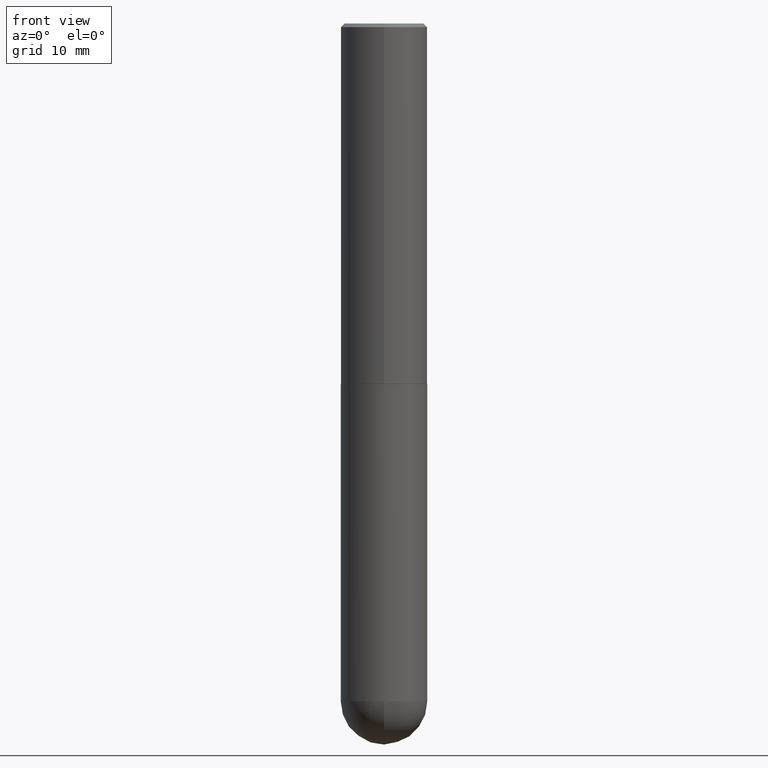
[diagram: clean part render]
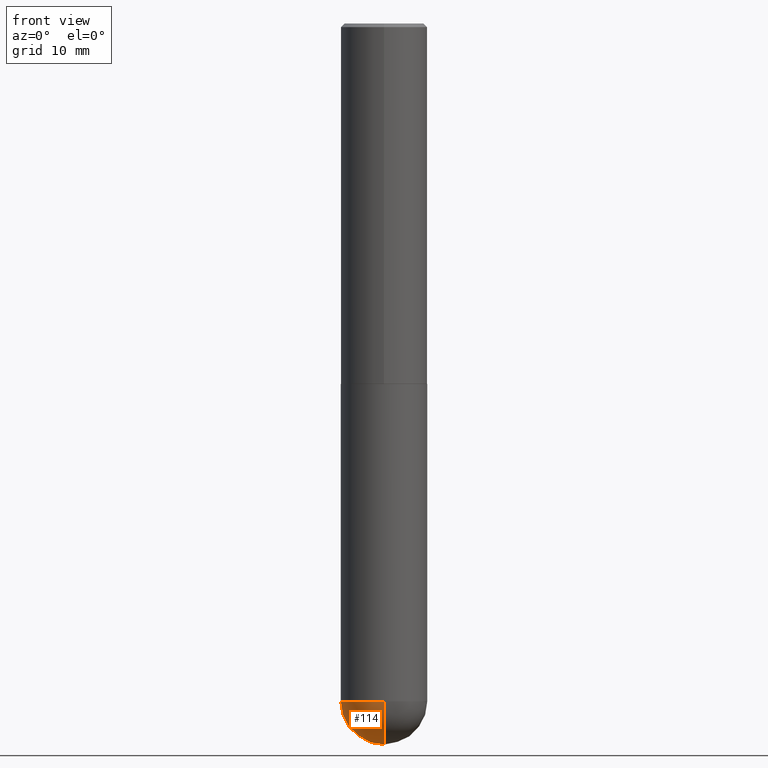
[diagram: same view with one face highlighted and labeled with its STEP entity id]
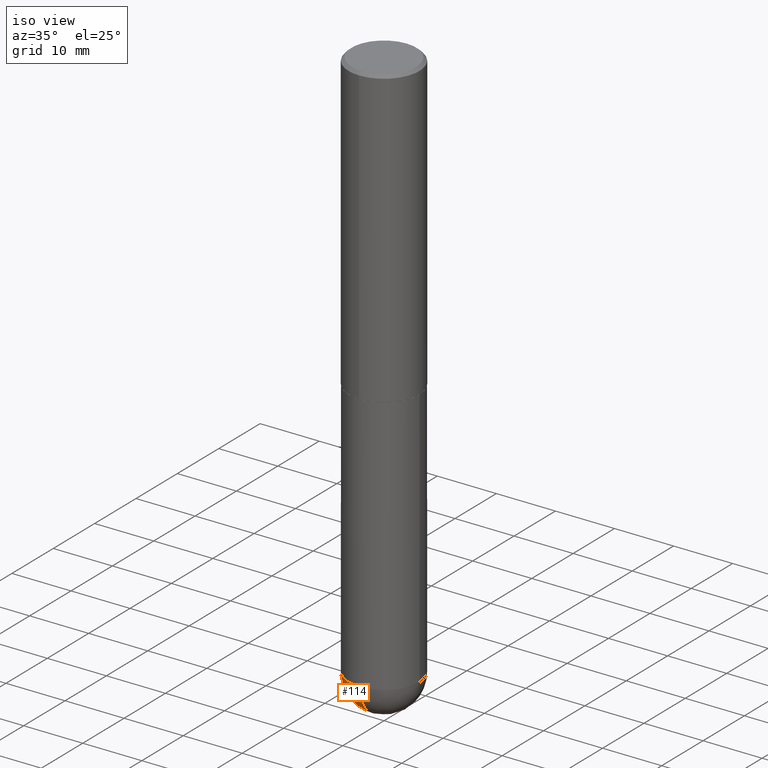
[diagram: same view with one face highlighted and labeled with its STEP entity id]
A machine part, front view. The second image highlights one B-rep face of the part: STEP entity #114.
A second angle (iso view) of the same face is appended — the face is thin or edge-on in the first view.
In plain terms, the highlighted spherical surface has radius 5.9995 mm.
Its self-contained STEP definition (entity closure, byte-faithful):
#2 = ORIENTED_EDGE ( 'NONE', *, *, #186, .F. ) ;
#5 = CIRCLE ( 'NONE', #134, 0.2361999999999999933 ) ;
#8 = ORIENTED_EDGE ( 'NONE', *, *, #66, .F. ) ;
#13 = CARTESIAN_POINT ( 'NONE',  ( -1.678301941865268633E-15, -0.2362000000000132882, -3.700799999999998757 ) ) ;
#15 = CIRCLE ( 'NONE', #105, 0.2361999999999999933 ) ;
#22 = AXIS2_PLACEMENT_3D ( 'NONE', #203, #402, #272 ) ;
#23 = ORIENTED_EDGE ( 'NONE', *, *, #320, .T. ) ;
#37 = AXIS2_PLACEMENT_3D ( 'NONE', #286, #56, #225 ) ;
#56 = DIRECTION ( 'NONE',  ( 1.000000000000000000, -6.982962677686265922E-15, 4.883557194083112340E-29 ) ) ;
#63 = CARTESIAN_POINT ( 'NONE',  ( 9.306790425912204830E-29, -1.420568132046758614E-14, -3.937000000000000277 ) ) ;
#66 = EDGE_CURVE ( 'NONE', #141, #84, #15, .T. ) ;
#68 = CIRCLE ( 'NONE', #302, 0.2362000000000002709 ) ;
#76 = DIRECTION ( 'NONE',  ( 1.000000000000000000, -6.982962677686265133E-15, 0.000000000000000000 ) ) ;
#78 = CARTESIAN_POINT ( 'NONE',  ( 8.719071180016067419E-29, -1.339545650693076387E-14, -3.700800000000000090 ) ) ;
#84 = VERTEX_POINT ( 'NONE', #13 ) ;
#88 = EDGE_CURVE ( 'NONE', #220, #141, #5, .T. ) ;
#93 = DIRECTION ( 'NONE',  ( 1.000000000000000000, -6.982962677686265133E-15, 0.000000000000000000 ) ) ;
#105 = AXIS2_PLACEMENT_3D ( 'NONE', #235, #368, #76 ) ;
#108 = VERTEX_POINT ( 'NONE', #63 ) ;
#114 = ADVANCED_FACE ( 'NONE', ( #288 ), #270, .T. ) ;
#134 = AXIS2_PLACEMENT_3D ( 'NONE', #154, #391, #93 ) ;
#141 = VERTEX_POINT ( 'NONE', #152 ) ;
#152 = CARTESIAN_POINT ( 'NONE',  ( -0.2361999999999999933, -8.218825635286368613E-15, -3.700800000000000090 ) ) ;
#154 = CARTESIAN_POINT ( 'NONE',  ( 9.050190957929953666E-29, -1.292127413879071357E-14, -3.700800000000000090 ) ) ;
#167 = DIRECTION ( 'NONE',  ( -7.105427357601001070E-15, -1.000000000000000000, 0.000000000000000000 ) ) ;
#177 = EDGE_LOOP ( 'NONE', ( #2, #23, #8, #216 ) ) ;
#186 = EDGE_CURVE ( 'NONE', #108, #220, #255, .T. ) ;
#203 = CARTESIAN_POINT ( 'NONE',  ( 8.719071180016067419E-29, -1.339545650693076387E-14, -3.700800000000000090 ) ) ;
#216 = ORIENTED_EDGE ( 'NONE', *, *, #88, .F. ) ;
#220 = VERTEX_POINT ( 'NONE', #377 ) ;
#225 = DIRECTION ( 'NONE',  ( 6.982962677686265922E-15, 1.000000000000000000, 0.000000000000000000 ) ) ;
#235 = CARTESIAN_POINT ( 'NONE',  ( 9.050190957929953666E-29, -1.292127413879071357E-14, -3.700800000000000090 ) ) ;
#255 = CIRCLE ( 'NONE', #37, 0.2362000000000002709 ) ;
#270 = SPHERICAL_SURFACE ( 'NONE', #22, 0.2362000000000002709 ) ;
#272 = DIRECTION ( 'NONE',  ( 6.982962677686265922E-15, 1.000000000000000000, -4.626330217890364603E-15 ) ) ;
#286 = CARTESIAN_POINT ( 'NONE',  ( 8.719071180016067419E-29, -1.339545650693076387E-14, -3.700800000000000090 ) ) ;
#288 = FACE_OUTER_BOUND ( 'NONE', #177, .T. ) ;
#302 = AXIS2_PLACEMENT_3D ( 'NONE', #78, #336, #167 ) ;
#320 = EDGE_CURVE ( 'NONE', #108, #84, #68, .T. ) ;
#336 = DIRECTION ( 'NONE',  ( -1.000000000000000000, 7.105427357601001070E-15, -4.926315508542082329E-29 ) ) ;
#368 = DIRECTION ( 'NONE',  ( -2.445468806185136597E-29, 3.491481338843145583E-15, 1.000000000000000000 ) ) ;
#377 = CARTESIAN_POINT ( 'NONE',  ( 1.649375784469585666E-15, 0.2361999999999869759, -3.700800000000000978 ) ) ;
#391 = DIRECTION ( 'NONE',  ( -2.445468806185136597E-29, 3.491481338843145583E-15, 1.000000000000000000 ) ) ;
#402 = DIRECTION ( 'NONE',  ( -1.000000000000000000, 6.982962677686265922E-15, -4.883557194083112901E-29 ) ) ;